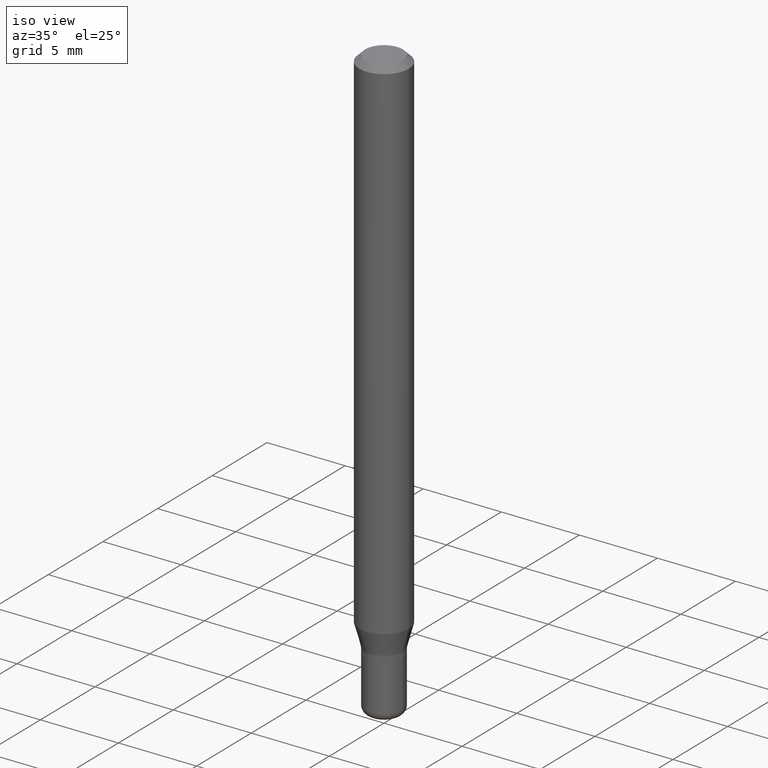
[diagram: clean part render]
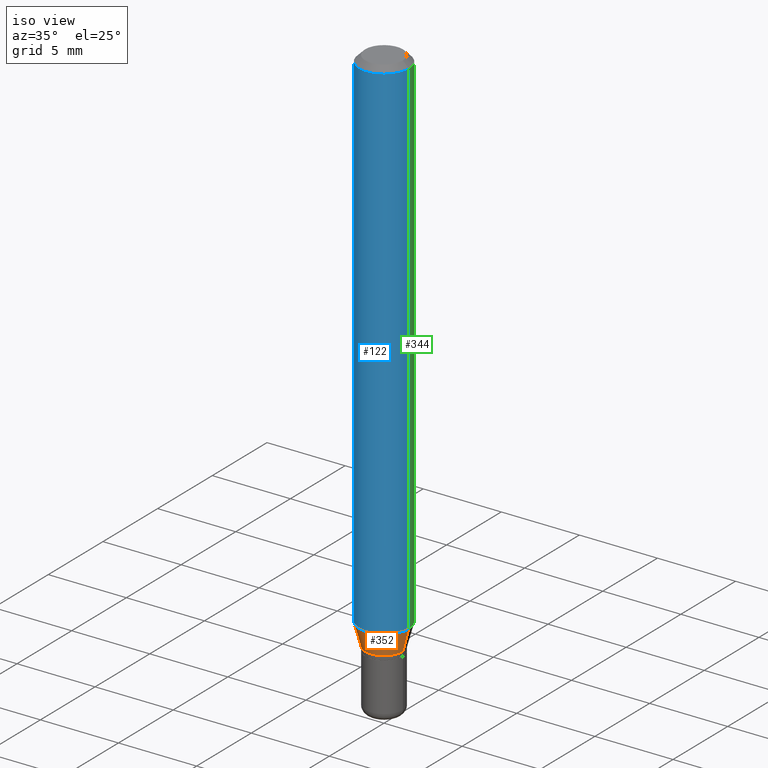
[diagram: same view with three faces highlighted in distinct colors, each labeled with its STEP entity id]
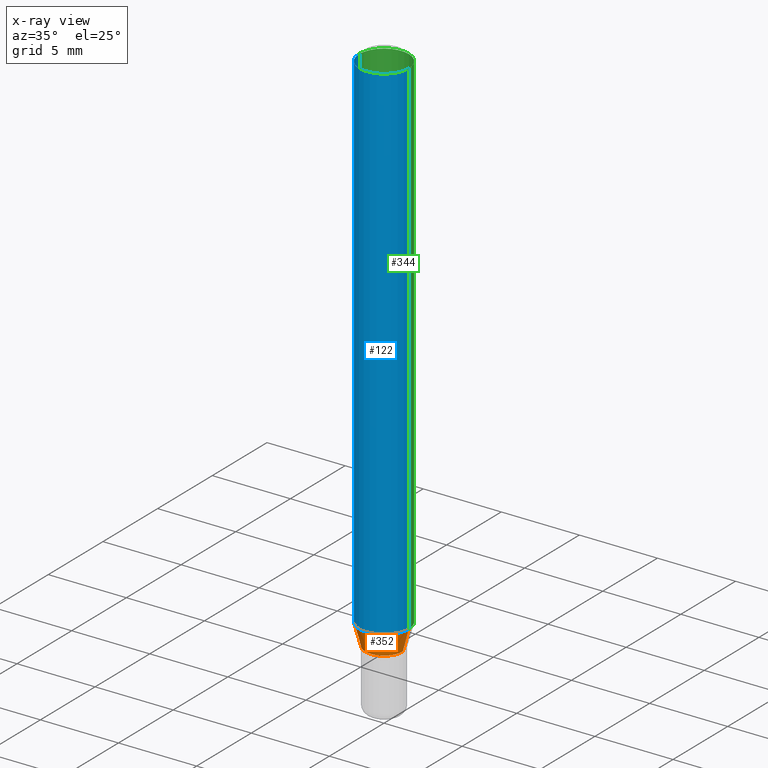
[diagram: x-ray of the same camera — body ghosted, the three highlighted faces saturated]
A machine part, iso view with three faces highlighted in distinct colors.
The next image is the same camera in x-ray (body ghosted, the three faces saturated) — at least one of them is partly hidden behind the body in this view.
Their STEP definitions:

[orange] entity #352 — the highlighted conical surface has half-angle 15 deg.
#39 = LINE ( 'NONE', #307, #420 ) ;
#44 = CARTESIAN_POINT ( 'NONE',  ( 0.06250000000000000000, -4.944004744523489955E-15, -1.291019237886467108 ) ) ;
#47 = VERTEX_POINT ( 'NONE', #493 ) ;
#56 = CARTESIAN_POINT ( 'NONE',  ( 0.04750000000000002137, -5.034716090611815085E-15, -1.347000000000000197 ) ) ;
#93 = CARTESIAN_POINT ( 'NONE',  ( 3.294046481931379390E-29, -4.703025363421717574E-15, -1.347000000000000197 ) ) ;
#114 = EDGE_CURVE ( 'NONE', #47, #381, #412, .T. ) ;
#119 = AXIS2_PLACEMENT_3D ( 'NONE', #455, #191, #502 ) ;
#138 = DIRECTION ( 'NONE',  ( -0.2588190451025204619, 5.211531920934543942E-15, 0.9659258262890684232 ) ) ;
#148 = EDGE_CURVE ( 'NONE', #415, #347, #39, .T. ) ;
#191 = DIRECTION ( 'NONE',  ( -2.445468806185136597E-29, 3.491481338843145583E-15, 1.000000000000000000 ) ) ;
#209 = DIRECTION ( 'NONE',  ( 1.000000000000000000, -6.982962677686258033E-15, 0.000000000000000000 ) ) ;
#265 = AXIS2_PLACEMENT_3D ( 'NONE', #452, #495, #408 ) ;
#281 = DIRECTION ( 'NONE',  ( -2.445468806185136597E-29, 3.491481338843145583E-15, 1.000000000000000000 ) ) ;
#288 = CONICAL_SURFACE ( 'NONE', #492, 0.04750000000000002137, 0.2617993877991491303 ) ;
#304 = VECTOR ( 'NONE', #138, 39.37007874015748854 ) ;
#307 = CARTESIAN_POINT ( 'NONE',  ( 0.04750000000000002137, -5.034716090611815085E-15, -1.347000000000000197 ) ) ;
#314 = ORIENTED_EDGE ( 'NONE', *, *, #114, .F. ) ;
#347 = VERTEX_POINT ( 'NONE', #44 ) ;
#352 = ADVANCED_FACE ( 'NONE', ( #395 ), #288, .T. ) ;
#360 = CIRCLE ( 'NONE', #119, 0.04750000000000002137 ) ;
#378 = ORIENTED_EDGE ( 'NONE', *, *, #462, .T. ) ;
#381 = VERTEX_POINT ( 'NONE', #467 ) ;
#395 = FACE_OUTER_BOUND ( 'NONE', #512, .T. ) ;
#400 = CIRCLE ( 'NONE', #265, 0.06250000000000000000 ) ;
#404 = ORIENTED_EDGE ( 'NONE', *, *, #421, .F. ) ;
#408 = DIRECTION ( 'NONE',  ( 1.000000000000000000, -6.982962677686262766E-15, 0.000000000000000000 ) ) ;
#412 = LINE ( 'NONE', #489, #304 ) ;
#415 = VERTEX_POINT ( 'NONE', #56 ) ;
#420 = VECTOR ( 'NONE', #464, 39.37007874015748854 ) ;
#421 = EDGE_CURVE ( 'NONE', #381, #347, #400, .T. ) ;
#423 = ORIENTED_EDGE ( 'NONE', *, *, #148, .T. ) ;
#452 = CARTESIAN_POINT ( 'NONE',  ( 3.157147274436263643E-29, -4.507569577168099864E-15, -1.291019237886467108 ) ) ;
#455 = CARTESIAN_POINT ( 'NONE',  ( 3.294046481931379390E-29, -4.703025363421717574E-15, -1.347000000000000197 ) ) ;
#462 = EDGE_CURVE ( 'NONE', #47, #415, #360, .T. ) ;
#464 = DIRECTION ( 'NONE',  ( 0.2588190451025204619, 1.565188264969629067E-15, 0.9659258262890684232 ) ) ;
#467 = CARTESIAN_POINT ( 'NONE',  ( -0.06250000000000000000, -4.063480367318036459E-15, -1.291019237886467108 ) ) ;
#489 = CARTESIAN_POINT ( 'NONE',  ( -0.04750000000000002137, -4.365517563935669292E-15, -1.347000000000000197 ) ) ;
#492 = AXIS2_PLACEMENT_3D ( 'NONE', #93, #281, #209 ) ;
#493 = CARTESIAN_POINT ( 'NONE',  ( -0.04750000000000002137, -4.214498965626852875E-15, -1.347000000000000197 ) ) ;
#495 = DIRECTION ( 'NONE',  ( -2.445468806185136597E-29, 3.491481338843145583E-15, 1.000000000000000000 ) ) ;
#502 = DIRECTION ( 'NONE',  ( 1.000000000000000000, -6.982962677686258033E-15, 0.000000000000000000 ) ) ;
#512 = EDGE_LOOP ( 'NONE', ( #314, #378, #423, #404 ) ) ;

[blue] entity #122 — the highlighted cylindrical surface (edge-blend (fillet) strip) has radius 1.5875 mm, axis along (-0, 0, 1).
#5 = VERTEX_POINT ( 'NONE', #371 ) ;
#7 = VECTOR ( 'NONE', #515, 39.37007874015748143 ) ;
#13 = AXIS2_PLACEMENT_3D ( 'NONE', #58, #14, #183 ) ;
#14 = DIRECTION ( 'NONE',  ( -2.445468806185136597E-29, 3.491481338843145583E-15, 1.000000000000000000 ) ) ;
#44 = CARTESIAN_POINT ( 'NONE',  ( 0.06250000000000000000, -4.944004744523489955E-15, -1.291019237886467108 ) ) ;
#53 = CYLINDRICAL_SURFACE ( 'NONE', #13, 0.06250000000000000000 ) ;
#58 = CARTESIAN_POINT ( 'NONE',  ( 0.000000000000000000, 0.000000000000000000, 0.000000000000000000 ) ) ;
#69 = ORIENTED_EDGE ( 'NONE', *, *, #226, .F. ) ;
#95 = CARTESIAN_POINT ( 'NONE',  ( 3.668203209277632395E-31, -5.237222008264614861E-17, -0.01499999999999970281 ) ) ;
#117 = CARTESIAN_POINT ( 'NONE',  ( 0.06250000000000000000, -4.364351673553916694E-16, 3.047610484872459871E-30 ) ) ;
#118 = EDGE_LOOP ( 'NONE', ( #167, #211, #468, #69 ) ) ;
#122 = ADVANCED_FACE ( 'NONE', ( #295 ), #53, .T. ) ;
#133 = VECTOR ( 'NONE', #169, 39.37007874015748143 ) ;
#167 = ORIENTED_EDGE ( 'NONE', *, *, #377, .F. ) ;
#169 = DIRECTION ( 'NONE',  ( -2.445468806185136877E-29, 3.491481338843145188E-15, 1.000000000000000000 ) ) ;
#171 = DIRECTION ( 'NONE',  ( 1.000000000000000000, -6.982962677686266711E-15, 0.000000000000000000 ) ) ;
#182 = CIRCLE ( 'NONE', #230, 0.06250000000000000000 ) ;
#183 = DIRECTION ( 'NONE',  ( 1.000000000000000000, -6.982962677686266711E-15, 4.876176775795935793E-29 ) ) ;
#211 = ORIENTED_EDGE ( 'NONE', *, *, #421, .T. ) ;
#226 = EDGE_CURVE ( 'NONE', #479, #5, #182, .T. ) ;
#230 = AXIS2_PLACEMENT_3D ( 'NONE', #95, #255, #171 ) ;
#255 = DIRECTION ( 'NONE',  ( -2.445468806185136597E-29, 3.491481338843145583E-15, 1.000000000000000000 ) ) ;
#265 = AXIS2_PLACEMENT_3D ( 'NONE', #452, #495, #408 ) ;
#295 = FACE_OUTER_BOUND ( 'NONE', #118, .T. ) ;
#340 = CARTESIAN_POINT ( 'NONE',  ( -0.06250000000000000000, -1.835881688775310264E-15, -0.01499999999999970281 ) ) ;
#347 = VERTEX_POINT ( 'NONE', #44 ) ;
#353 = CARTESIAN_POINT ( 'NONE',  ( -0.06250000000000000000, 4.440892098500626162E-16, -3.074334431409316114E-30 ) ) ;
#356 = LINE ( 'NONE', #117, #133 ) ;
#358 = LINE ( 'NONE', #353, #7 ) ;
#371 = CARTESIAN_POINT ( 'NONE',  ( 0.06250000000000000000, -4.888073874380378612E-16, -0.01499999999999970281 ) ) ;
#377 = EDGE_CURVE ( 'NONE', #381, #479, #358, .T. ) ;
#381 = VERTEX_POINT ( 'NONE', #467 ) ;
#384 = EDGE_CURVE ( 'NONE', #347, #5, #356, .T. ) ;
#400 = CIRCLE ( 'NONE', #265, 0.06250000000000000000 ) ;
#408 = DIRECTION ( 'NONE',  ( 1.000000000000000000, -6.982962677686262766E-15, 0.000000000000000000 ) ) ;
#421 = EDGE_CURVE ( 'NONE', #381, #347, #400, .T. ) ;
#452 = CARTESIAN_POINT ( 'NONE',  ( 3.157147274436263643E-29, -4.507569577168099864E-15, -1.291019237886467108 ) ) ;
#467 = CARTESIAN_POINT ( 'NONE',  ( -0.06250000000000000000, -4.063480367318036459E-15, -1.291019237886467108 ) ) ;
#468 = ORIENTED_EDGE ( 'NONE', *, *, #384, .T. ) ;
#479 = VERTEX_POINT ( 'NONE', #340 ) ;
#495 = DIRECTION ( 'NONE',  ( -2.445468806185136597E-29, 3.491481338843145583E-15, 1.000000000000000000 ) ) ;
#515 = DIRECTION ( 'NONE',  ( -2.445468806185136877E-29, 3.491481338843145188E-15, 1.000000000000000000 ) ) ;

[green] entity #344 — the highlighted cylindrical surface (edge-blend (fillet) strip) has radius 1.5875 mm, axis along (-0, 0, 1).
#2 = CARTESIAN_POINT ( 'NONE',  ( 3.157147274436263643E-29, -4.507569577168099864E-15, -1.291019237886467108 ) ) ;
#5 = VERTEX_POINT ( 'NONE', #371 ) ;
#7 = VECTOR ( 'NONE', #515, 39.37007874015748143 ) ;
#38 = EDGE_LOOP ( 'NONE', ( #150, #393, #366, #504 ) ) ;
#44 = CARTESIAN_POINT ( 'NONE',  ( 0.06250000000000000000, -4.944004744523489955E-15, -1.291019237886467108 ) ) ;
#89 = CIRCLE ( 'NONE', #380, 0.06250000000000000000 ) ;
#117 = CARTESIAN_POINT ( 'NONE',  ( 0.06250000000000000000, -4.364351673553916694E-16, 3.047610484872459871E-30 ) ) ;
#128 = FACE_OUTER_BOUND ( 'NONE', #38, .T. ) ;
#133 = VECTOR ( 'NONE', #169, 39.37007874015748143 ) ;
#150 = ORIENTED_EDGE ( 'NONE', *, *, #268, .T. ) ;
#166 = CARTESIAN_POINT ( 'NONE',  ( 3.668203209277632395E-31, -5.237222008264614861E-17, -0.01499999999999970281 ) ) ;
#169 = DIRECTION ( 'NONE',  ( -2.445468806185136877E-29, 3.491481338843145188E-15, 1.000000000000000000 ) ) ;
#175 = DIRECTION ( 'NONE',  ( 1.000000000000000000, -6.982962677686266711E-15, 4.876176775795935793E-29 ) ) ;
#176 = DIRECTION ( 'NONE',  ( -2.445468806185136597E-29, 3.491481338843145583E-15, 1.000000000000000000 ) ) ;
#237 = AXIS2_PLACEMENT_3D ( 'NONE', #317, #390, #175 ) ;
#268 = EDGE_CURVE ( 'NONE', #347, #381, #325, .T. ) ;
#317 = CARTESIAN_POINT ( 'NONE',  ( 0.000000000000000000, 0.000000000000000000, 0.000000000000000000 ) ) ;
#325 = CIRCLE ( 'NONE', #501, 0.06250000000000000000 ) ;
#332 = EDGE_CURVE ( 'NONE', #5, #479, #89, .T. ) ;
#340 = CARTESIAN_POINT ( 'NONE',  ( -0.06250000000000000000, -1.835881688775310264E-15, -0.01499999999999970281 ) ) ;
#344 = ADVANCED_FACE ( 'NONE', ( #128 ), #349, .T. ) ;
#347 = VERTEX_POINT ( 'NONE', #44 ) ;
#349 = CYLINDRICAL_SURFACE ( 'NONE', #237, 0.06250000000000000000 ) ;
#353 = CARTESIAN_POINT ( 'NONE',  ( -0.06250000000000000000, 4.440892098500626162E-16, -3.074334431409316114E-30 ) ) ;
#356 = LINE ( 'NONE', #117, #133 ) ;
#358 = LINE ( 'NONE', #353, #7 ) ;
#359 = DIRECTION ( 'NONE',  ( -2.445468806185136597E-29, 3.491481338843145583E-15, 1.000000000000000000 ) ) ;
#364 = DIRECTION ( 'NONE',  ( 1.000000000000000000, -6.982962677686262766E-15, 0.000000000000000000 ) ) ;
#366 = ORIENTED_EDGE ( 'NONE', *, *, #332, .F. ) ;
#371 = CARTESIAN_POINT ( 'NONE',  ( 0.06250000000000000000, -4.888073874380378612E-16, -0.01499999999999970281 ) ) ;
#377 = EDGE_CURVE ( 'NONE', #381, #479, #358, .T. ) ;
#380 = AXIS2_PLACEMENT_3D ( 'NONE', #166, #359, #481 ) ;
#381 = VERTEX_POINT ( 'NONE', #467 ) ;
#384 = EDGE_CURVE ( 'NONE', #347, #5, #356, .T. ) ;
#390 = DIRECTION ( 'NONE',  ( -2.445468806185136597E-29, 3.491481338843145583E-15, 1.000000000000000000 ) ) ;
#393 = ORIENTED_EDGE ( 'NONE', *, *, #377, .T. ) ;
#467 = CARTESIAN_POINT ( 'NONE',  ( -0.06250000000000000000, -4.063480367318036459E-15, -1.291019237886467108 ) ) ;
#479 = VERTEX_POINT ( 'NONE', #340 ) ;
#481 = DIRECTION ( 'NONE',  ( 1.000000000000000000, -6.982962677686266711E-15, 0.000000000000000000 ) ) ;
#501 = AXIS2_PLACEMENT_3D ( 'NONE', #2, #176, #364 ) ;
#504 = ORIENTED_EDGE ( 'NONE', *, *, #384, .F. ) ;
#515 = DIRECTION ( 'NONE',  ( -2.445468806185136877E-29, 3.491481338843145188E-15, 1.000000000000000000 ) ) ;